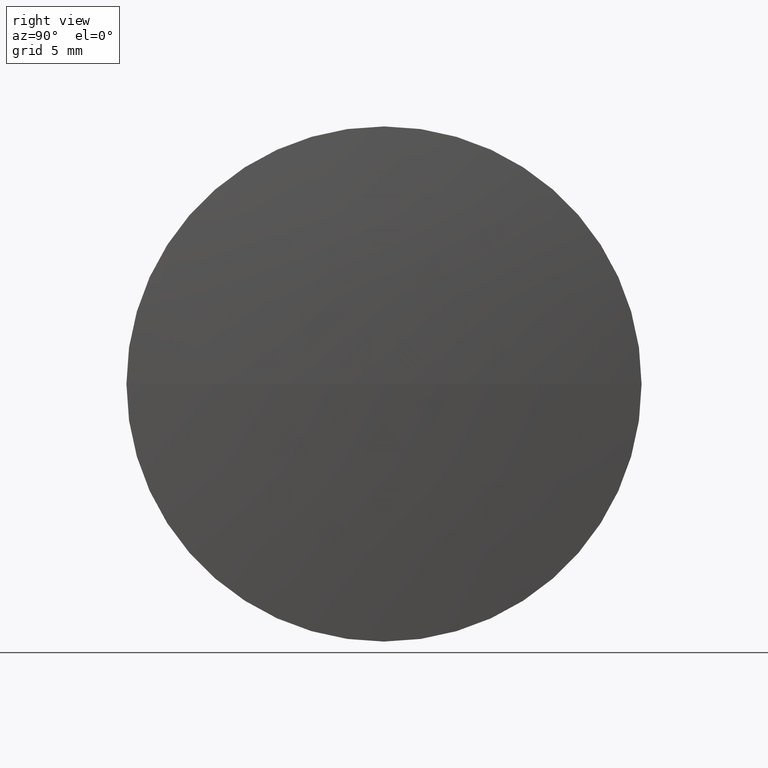
[diagram: clean part render]
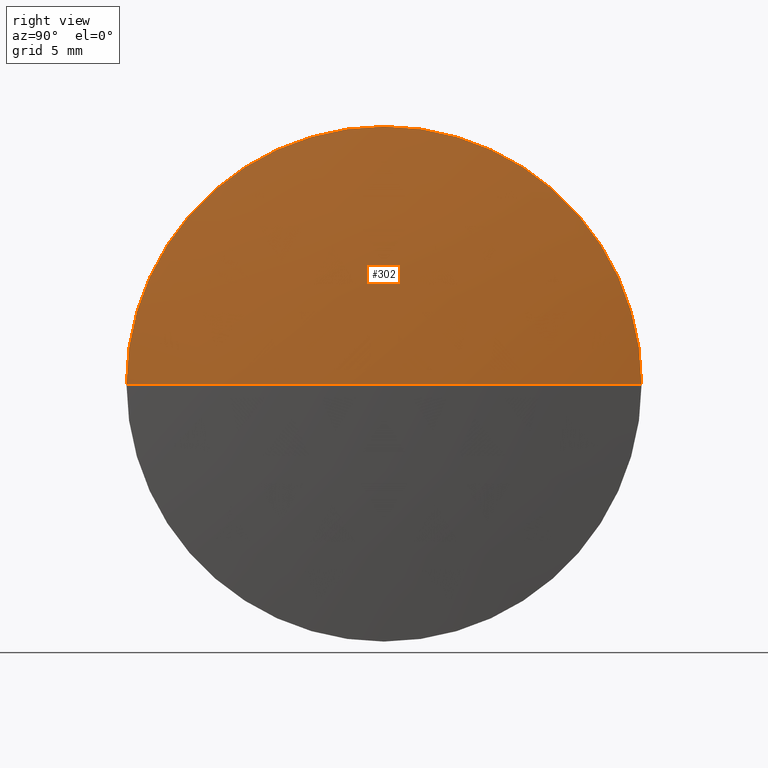
[diagram: same view with one face highlighted and labeled with its STEP entity id]
A machine part, right view. The second image highlights one B-rep face of the part: STEP entity #302.
In plain terms, the highlighted spherical surface has radius 134.671 mm.
Its self-contained STEP definition (entity closure, byte-faithful):
#23 = DIRECTION ( 'NONE',  ( -1.000000000000000000, -0.0000000000000000000, -0.0000000000000000000 ) ) ;
#26 = CARTESIAN_POINT ( 'NONE',  ( 87.45786520323396500, 48.61611302318478100, 0.0000000000000000000 ) ) ;
#29 = DIRECTION ( 'NONE',  ( 0.0000000000000000000, -1.000000000000000000, -1.224646799147353000E-016 ) ) ;
#39 = AXIS2_PLACEMENT_3D ( 'NONE', #225, #194, #29 ) ;
#42 = CARTESIAN_POINT ( 'NONE',  ( 87.45786520323396500, 48.61611302318478100, 12.69999999999999600 ) ) ;
#45 = EDGE_CURVE ( 'NONE', #343, #160, #97, .T. ) ;
#49 = ORIENTED_EDGE ( 'NONE', *, *, #45, .F. ) ;
#50 = EDGE_CURVE ( 'NONE', #315, #343, #221, .T. ) ;
#57 = CARTESIAN_POINT ( 'NONE',  ( -46.61327322136452300, 48.61611302318488700, 0.0000000000000000000 ) ) ;
#64 = CARTESIAN_POINT ( 'NONE',  ( 87.45786520323397900, 61.31611302318493300, 1.555301434917144000E-015 ) ) ;
#82 = DIRECTION ( 'NONE',  ( -1.000000000000000000, -0.0000000000000000000, -0.0000000000000000000 ) ) ;
#92 = CARTESIAN_POINT ( 'NONE',  ( -46.61327322136452300, 48.61611302318488700, 0.0000000000000000000 ) ) ;
#97 = CIRCLE ( 'NONE', #233, 12.69999999999999600 ) ;
#103 = EDGE_CURVE ( 'NONE', #299, #315, #241, .T. ) ;
#118 = EDGE_CURVE ( 'NONE', #299, #160, #148, .T. ) ;
#137 = ORIENTED_EDGE ( 'NONE', *, *, #103, .F. ) ;
#139 = CARTESIAN_POINT ( 'NONE',  ( 88.05803091751970200, 48.61611302318488000, 0.0000000000000000000 ) ) ;
#140 = DIRECTION ( 'NONE',  ( 0.0000000000000000000, 0.0000000000000000000, 1.000000000000000000 ) ) ;
#148 = CIRCLE ( 'NONE', #39, 134.6713041388842400 ) ;
#160 = VERTEX_POINT ( 'NONE', #64 ) ;
#177 = AXIS2_PLACEMENT_3D ( 'NONE', #57, #140, #277 ) ;
#194 = DIRECTION ( 'NONE',  ( 0.0000000000000000000, -1.224646799147353200E-016, 1.000000000000000000 ) ) ;
#210 = SPHERICAL_SURFACE ( 'NONE', #177, 134.6713041388842400 ) ;
#216 = DIRECTION ( 'NONE',  ( 0.0000000000000000000, 0.0000000000000000000, 1.000000000000000000 ) ) ;
#221 = CIRCLE ( 'NONE', #247, 12.69999999999999600 ) ;
#225 = CARTESIAN_POINT ( 'NONE',  ( -46.61327322136452300, 48.61611302318488700, 0.0000000000000000000 ) ) ;
#233 = AXIS2_PLACEMENT_3D ( 'NONE', #345, #23, #216 ) ;
#241 = CIRCLE ( 'NONE', #332, 134.6713041388842400 ) ;
#247 = AXIS2_PLACEMENT_3D ( 'NONE', #26, #82, #273 ) ;
#270 = EDGE_LOOP ( 'NONE', ( #137, #336, #49, #292 ) ) ;
#273 = DIRECTION ( 'NONE',  ( 0.0000000000000000000, 0.0000000000000000000, 1.000000000000000000 ) ) ;
#277 = DIRECTION ( 'NONE',  ( 0.0000000000000000000, -1.000000000000000000, 0.0000000000000000000 ) ) ;
#281 = CARTESIAN_POINT ( 'NONE',  ( 87.45786520323397900, 35.91611302318473500, 0.0000000000000000000 ) ) ;
#292 = ORIENTED_EDGE ( 'NONE', *, *, #50, .F. ) ;
#299 = VERTEX_POINT ( 'NONE', #139 ) ;
#302 = ADVANCED_FACE ( 'NONE', ( #314 ), #210, .T. ) ;
#306 = DIRECTION ( 'NONE',  ( 0.0000000000000000000, 0.0000000000000000000, -1.000000000000000000 ) ) ;
#314 = FACE_OUTER_BOUND ( 'NONE', #270, .T. ) ;
#315 = VERTEX_POINT ( 'NONE', #281 ) ;
#326 = DIRECTION ( 'NONE',  ( -1.000000000000000000, 0.0000000000000000000, 0.0000000000000000000 ) ) ;
#332 = AXIS2_PLACEMENT_3D ( 'NONE', #92, #306, #326 ) ;
#336 = ORIENTED_EDGE ( 'NONE', *, *, #118, .T. ) ;
#343 = VERTEX_POINT ( 'NONE', #42 ) ;
#345 = CARTESIAN_POINT ( 'NONE',  ( 87.45786520323396500, 48.61611302318478100, 0.0000000000000000000 ) ) ;